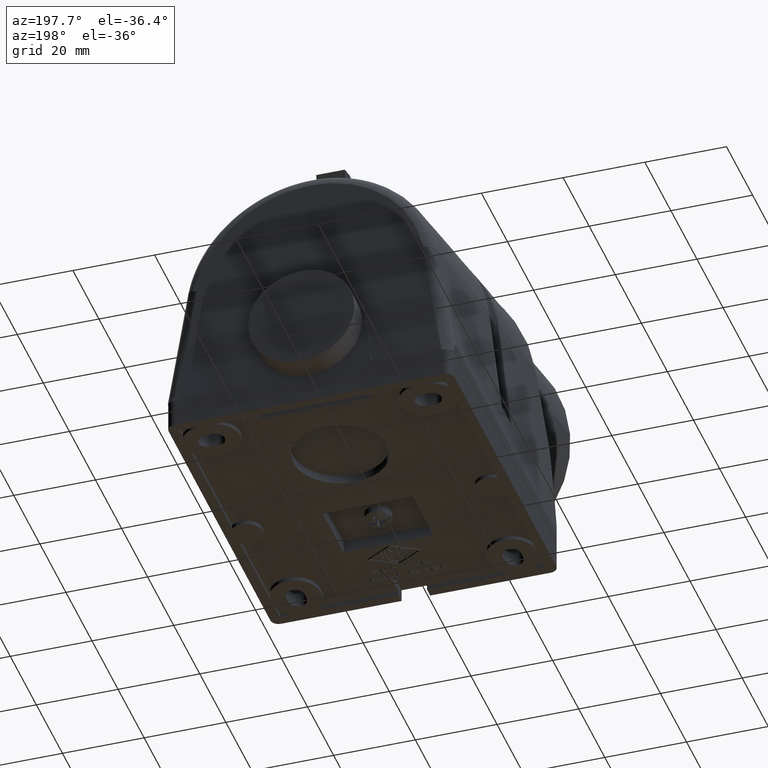
[diagram: clean part render]
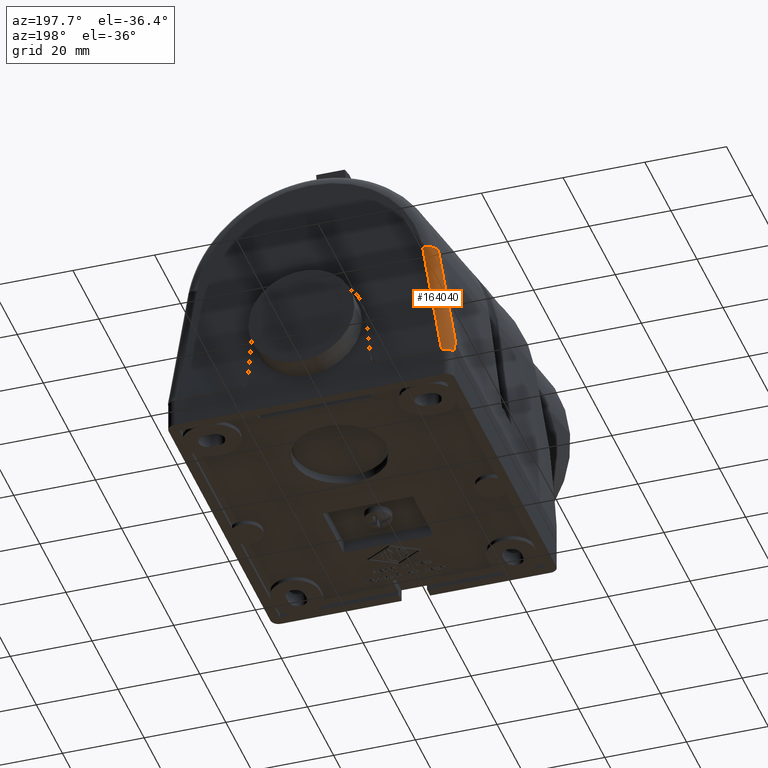
[diagram: same view with one face highlighted and labeled with its STEP entity id]
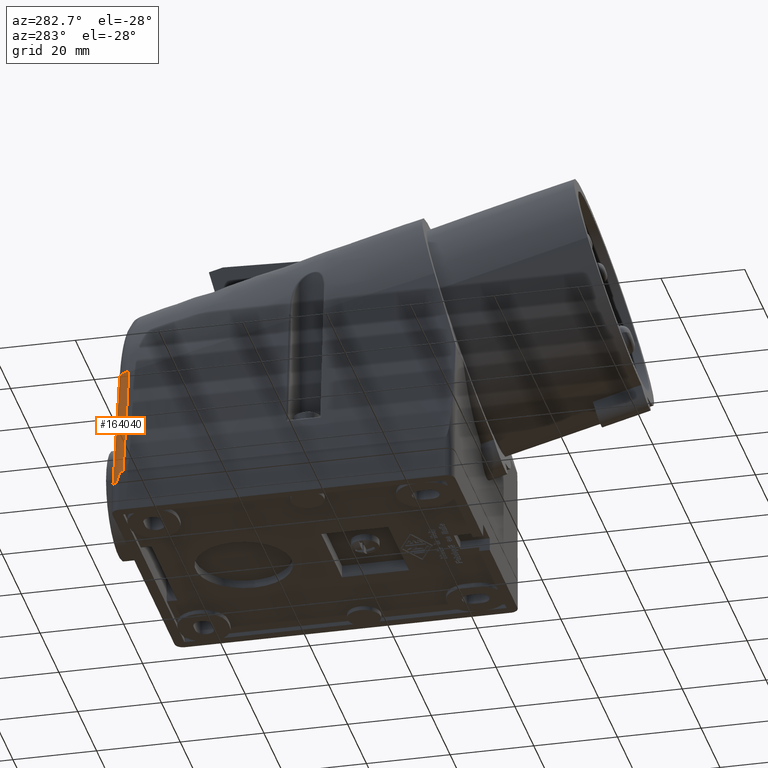
[diagram: same view with one face highlighted and labeled with its STEP entity id]
A machine part, auxiliary view. The second image highlights one B-rep face of the part: STEP entity #164040.
A second angle (auxiliary view) of the same face is appended — the face is thin or edge-on in the first view.
In plain terms, the highlighted face is a freeform B-spline surface patch.
Its self-contained STEP definition (entity closure, byte-faithful):
#14720=CARTESIAN_POINT('',(16.3582591899884,151.150133243389,
30.9684872942009));
#14730=VERTEX_POINT('',#14720);
#14760=CARTESIAN_POINT('',(16.3582591899884,151.150133243389,
30.9684872942009));
#14770=CARTESIAN_POINT('',(16.3394756758895,151.152263626485,
30.8464377283722));
#14780=CARTESIAN_POINT('',(16.3207169550342,151.154391388344,
30.7245383330639));
#14790=CARTESIAN_POINT('',(15.9371637126508,151.197888634816,
28.2325827516662));
#14800=CARTESIAN_POINT('',(15.5717947111044,151.23925118952,
25.8629235797078));
#14810=CARTESIAN_POINT('',(14.8399322437501,151.321973086947,
21.1237892500856));
#14820=CARTESIAN_POINT('',(14.4734381190812,151.36333249416,
18.7543103977778));
#14830=CARTESIAN_POINT('',(13.7438993153299,151.445545062126,
14.0443555334652));
#14840=CARTESIAN_POINT('',(13.3808675610874,151.486398178918,
11.7038820399362));
#14850=CARTESIAN_POINT('',(12.835642852448,151.547676044745,
8.19327545788855));
#14860=CARTESIAN_POINT('',(12.6537884870661,151.568101682323,
7.02309146479639));
#14870=CARTESIAN_POINT('',(12.3808451267146,151.598739732108,
5.26783876814393));
#14880=CARTESIAN_POINT('',(12.2898371036169,151.608952339634,
4.68275887486088));
#14890=CARTESIAN_POINT('',(12.1532855502537,151.624271150819,
3.80514476984341));
#14900=CARTESIAN_POINT('',(12.1077617841068,151.629377403959,
3.51260772334019));
#14910=CARTESIAN_POINT('',(12.0394664040757,151.637036754998,
3.07380379621401));
#14920=CARTESIAN_POINT('',(12.0166995632146,151.639589877589,
2.92753550091416));
#14930=CARTESIAN_POINT('',(11.9882392056473,151.642781251447,
2.74470181506648));
#14940=CARTESIAN_POINT('',(11.982548285605,151.643419385507,
2.70814313924081));
#14950=CARTESIAN_POINT('',(11.9711637464653,151.644695933111,
2.63500977597465));
#14960=CARTESIAN_POINT('',(11.9654743615852,151.645333960546,
2.59845720873708));
#14970=CARTESIAN_POINT('',(11.9483966443726,151.647248373591,
2.4887805588414));
#14980=CARTESIAN_POINT('',(11.9369907317299,151.648525824098,
2.41559546829519));
#14990=CARTESIAN_POINT('',(11.8799517856634,151.654908630516,
2.04992473352391));
#15000=CARTESIAN_POINT('',(11.8341691970418,151.660014314261,
1.75742030766674));
#15010=CARTESIAN_POINT('',(11.7423512811458,151.670224671364,
1.17246934099092));
#15020=CARTESIAN_POINT('',(11.6963156431398,151.675329358201,
0.88002202794935));
#15030=CARTESIAN_POINT('',(11.6040245427899,151.685538416829,
0.295145450881856));
#15040=CARTESIAN_POINT('',(11.5577711443752,151.69064254527,
0.0027301283440142));
#15050=CARTESIAN_POINT('',(11.4650755614264,151.700850488563,
-0.582082551227911));
#15060=CARTESIAN_POINT('',(11.4186336519094,151.705954262514,
-0.874477565042708));
#15070=CARTESIAN_POINT('',(11.2790616609025,151.721265197763,
-1.75164045801822));
#15080=CARTESIAN_POINT('',(11.1856931953877,151.731471271296,
-2.33634601913609));
#15090=CARTESIAN_POINT('',(11.089881852221,151.741915781187,
-2.93471159004782));
#15100=CARTESIAN_POINT('',(11.087679682182,151.742155826934,
-2.94846380168504));
#15110=CARTESIAN_POINT('',(11.0854773804384,151.742395871655,
-2.96221595449196));
#15120=B_SPLINE_CURVE_WITH_KNOTS('',3,(#14760,#14770,#14780,#14790,
#14800,#14810,#14820,#14830,#14840,#14850,#14860,#14870,#14880,#14890,
#14900,#14910,#14920,#14930,#14940,#14950,#14960,#14970,#14980,#14990,
#15000,#15010,#15020,#15030,#15040,#15050,#15060,#15070,#15080,#15090,
#15100,#15110),.UNSPECIFIED.,.F.,.F.,(4,2,2,2,2,2,2,2,2,2,2,2,2,2,2,2,2,
4),(0.,0.370932338242532,7.56424973885539,14.7576346102345,
21.8634976009697,25.4164486433955,27.1929287476784,28.0811698696494,
28.5252905849976,28.6363204538176,28.7472982026934,28.9689727505356,
29.8558381380065,30.7429288936756,31.630196082612,32.5176042480671,
34.2927462228571,34.3345041400501),.UNSPECIFIED.);
#15130=CARTESIAN_POINT('',(11.5573064982427,151.690690199838,
1.77635683940025E-15));
#15140=VERTEX_POINT('',#15130);
#15150=EDGE_CURVE('',#14730,#15140,#15120,.T.);
#23180=CARTESIAN_POINT('',(13.3959867161082,148.270471415851,
31.3750076208347));
#23190=VERTEX_POINT('',#23180);
#32870=CARTESIAN_POINT('',(77.9930524789947,109.69038554375,
1.77635683940025E-15));
#32880=DIRECTION('',(-0.,0.,-1.));
#32890=DIRECTION('',(-0.,-1.,0.));
#32900=AXIS2_PLACEMENT_3D('',#32870,#32880,#32890);
#32910=PLANE('',#32900);
#45670=CARTESIAN_POINT('',(13.3959867161081,148.270471415851,
31.3750076208347));
#45680=CARTESIAN_POINT('',(13.3771345353187,148.271945181401,
31.2526761735191));
#45690=CARTESIAN_POINT('',(13.3582472348222,148.273165403463,
31.1301926508231));
#45700=CARTESIAN_POINT('',(12.9742789239599,148.30465403487,
28.638639043564));
#45710=CARTESIAN_POINT('',(12.6085964259826,148.335015412872,
26.269353258562));
#45720=CARTESIAN_POINT('',(11.8762309160192,148.396495542759,
21.5308900981883));
#45730=CARTESIAN_POINT('',(11.5095484415175,148.427614283566,
19.1617165716625));
#45740=CARTESIAN_POINT('',(10.7797395618731,148.490156977178,
14.4523274730381));
#45750=CARTESIAN_POINT('',(10.4166234271115,148.52157270372,
12.1121057828522));
#45760=CARTESIAN_POINT('',(9.87133702540012,148.56915524104,
8.60186279369063));
#45770=CARTESIAN_POINT('',(9.68947165574938,148.585092729939,
7.43178939230677));
#45780=CARTESIAN_POINT('',(9.41652699438179,148.60910861857,
5.67670236228185));
#45790=CARTESIAN_POINT('',(9.32552070423741,148.617132219912,
5.09167527988618));
#45800=CARTESIAN_POINT('',(9.18897535474765,148.629194424844,
4.21414023074397));
#45810=CARTESIAN_POINT('',(9.14345418820572,148.633219632821,
3.92162906473896));
#45820=CARTESIAN_POINT('',(9.07516354019031,148.639264071339,
3.48286361904154));
#45830=CARTESIAN_POINT('',(9.05239855185628,148.641279984711,
3.33660897067749));
#45840=CARTESIAN_POINT('',(9.02394034493802,148.643801260461,
3.15379011289883));
#45850=CARTESIAN_POINT('',(9.01824726969742,148.644305703142,
3.11721773625814));
#45860=CARTESIAN_POINT('',(9.00686900910318,148.645314010087,
3.04412487704148));
#45870=CARTESIAN_POINT('',(9.00118100519187,148.645817786263,
3.00758121481611));
#45880=CARTESIAN_POINT('',(8.98414254906837,148.647334229481,
2.89815661753258));
#45890=CARTESIAN_POINT('',(8.97279388414102,148.648342788055,
2.82533864168919));
#45900=CARTESIAN_POINT('',(8.91594750902398,148.653387887327,
2.46089987595847));
#45910=CARTESIAN_POINT('',(8.87031401214267,148.657416087925,
2.16934212608293));
#45920=CARTESIAN_POINT('',(8.77876736919753,148.665465440632,
1.58610043210767));
#45930=CARTESIAN_POINT('',(8.73285413053751,148.669486541805,
1.29441730064089));
#45940=CARTESIAN_POINT('',(8.64079630320044,148.677525620528,
0.710985173951132));
#45950=CARTESIAN_POINT('',(8.59464939540251,148.681543767226,
0.419222309241027));
#45960=CARTESIAN_POINT('',(8.54361233560349,148.685978193699,
0.0972046836502773));
#45970=CARTESIAN_POINT('',(8.5388166057993,148.686394784674,
0.0669525422168125));
#45980=CARTESIAN_POINT('',(8.5340198571094,148.686811374004,
0.0367003334339184));
#45990=B_SPLINE_CURVE_WITH_KNOTS('',3,(#45670,#45680,#45690,#45700,
#45710,#45720,#45730,#45740,#45750,#45760,#45770,#45780,#45790,#45800,
#45810,#45820,#45830,#45840,#45850,#45860,#45870,#45880,#45890,#45900,
#45910,#45920,#45930,#45940,#45950,#45960,#45970,#45980),.UNSPECIFIED.,
.F.,.F.,(4,2,2,2,2,2,2,2,2,2,2,2,2,2,2,4),(0.,0.370932338242532,
7.56424973885539,14.7576346102345,21.8634976009697,25.4164486433955,
27.1929287476784,28.0811698696494,28.5252905849976,28.6363204538176,
28.7472982026934,28.9689727505356,29.8558381380065,30.7429288936756,
31.630196082612,31.7221935308179),.UNSPECIFIED.);
#46000=CARTESIAN_POINT('',(9.,148.645923350407,2.99999915269815));
#46010=VERTEX_POINT('',#46000);
#46020=EDGE_CURVE('',#23190,#46010,#45990,.T.);
#78650=CARTESIAN_POINT('',(9.,149.69038554375,3.));
#78660=DIRECTION('',(-1.,0.,0.));
#78670=DIRECTION('',(-0.,-1.,0.));
#78680=AXIS2_PLACEMENT_3D('',#78650,#78660,#78670);
#78690=PLANE('',#78680);
#78820=CARTESIAN_POINT('',(9.,150.303273490881,1.77635683940025E-15));
#78830=VERTEX_POINT('',#78820);
#78860=CARTESIAN_POINT('',(16.3582591899884,151.150133243389,
30.9684872942009));
#78870=CARTESIAN_POINT('',(16.3394756758895,151.152263626485,
30.8464377283722));
#78880=CARTESIAN_POINT('',(16.3207169550342,151.154391388344,
30.7245383330639));
#78890=CARTESIAN_POINT('',(15.9371637126508,151.197888634816,
28.2325827516662));
#78900=CARTESIAN_POINT('',(15.5717947111044,151.23925118952,
25.8629235797078));
#78910=CARTESIAN_POINT('',(14.8399322437501,151.321973086947,
21.1237892500856));
#78920=CARTESIAN_POINT('',(14.4734381190812,151.36333249416,
18.7543103977778));
#78930=CARTESIAN_POINT('',(13.7438993153299,151.445545062126,
14.0443555334652));
#78940=CARTESIAN_POINT('',(13.3808675610874,151.486398178918,
11.7038820399362));
#78950=CARTESIAN_POINT('',(12.835642852448,151.547676044745,
8.19327545788855));
#78960=CARTESIAN_POINT('',(12.6537884870661,151.568101682323,
7.02309146479639));
#78970=CARTESIAN_POINT('',(12.3808451267146,151.598739732108,
5.26783876814393));
#78980=CARTESIAN_POINT('',(12.2898371036169,151.608952339634,
4.68275887486088));
#78990=CARTESIAN_POINT('',(12.1532855502537,151.624271150819,
3.80514476984341));
#79000=CARTESIAN_POINT('',(12.1077617841068,151.629377403959,
3.51260772334019));
#79010=CARTESIAN_POINT('',(12.0394664040757,151.637036754998,
3.07380379621401));
#79020=CARTESIAN_POINT('',(12.0166995632146,151.639589877589,
2.92753550091416));
#79030=CARTESIAN_POINT('',(11.9882392056473,151.642781251447,
2.74470181506648));
#79040=CARTESIAN_POINT('',(11.982548285605,151.643419385507,
2.70814313924081));
#79050=CARTESIAN_POINT('',(11.9711637464653,151.644695933111,
2.63500977597465));
#79060=CARTESIAN_POINT('',(11.9654743615852,151.645333960546,
2.59845720873708));
#79070=CARTESIAN_POINT('',(11.9483966443726,151.647248373591,
2.4887805588414));
#79080=CARTESIAN_POINT('',(11.9369907317299,151.648525824098,
2.41559546829519));
#79090=CARTESIAN_POINT('',(11.8799517856634,151.654908630516,
2.04992473352391));
#79100=CARTESIAN_POINT('',(11.8341691970418,151.660014314261,
1.75742030766674));
#79110=CARTESIAN_POINT('',(11.7423512811458,151.670224671364,
1.17246934099092));
#79120=CARTESIAN_POINT('',(11.6963156431398,151.675329358201,
0.88002202794935));
#79130=CARTESIAN_POINT('',(11.6040245427899,151.685538416829,
0.295145450881856));
#79140=CARTESIAN_POINT('',(11.5577711443752,151.69064254527,
0.0027301283440142));
#79150=CARTESIAN_POINT('',(11.4650755614264,151.700850488563,
-0.582082551227911));
#79160=CARTESIAN_POINT('',(11.4186336519094,151.705954262514,
-0.874477565042708));
#79170=CARTESIAN_POINT('',(11.2790616609025,151.721265197763,
-1.75164045801822));
#79180=CARTESIAN_POINT('',(11.1856931953877,151.731471271296,
-2.33634601913609));
#79190=CARTESIAN_POINT('',(10.9984576384785,151.751882044817,
-3.50567845099773));
#79200=CARTESIAN_POINT('',(10.9045922213987,151.762086477411,
-4.09029000274163));
#79210=CARTESIAN_POINT('',(10.7164617994828,151.782494764056,
-5.25947996158983));
#79220=CARTESIAN_POINT('',(10.6222002542422,151.79269819387,
-5.84403406413831));
#79230=CARTESIAN_POINT('',(10.4333562227278,151.813104492233,
-7.01311011436419));
#79240=CARTESIAN_POINT('',(10.3387760835784,151.823307077961,
-7.59761585928156));
#79250=CARTESIAN_POINT('',(10.1493545249973,151.843711746776,
-8.76659855276121));
#79260=CARTESIAN_POINT('',(10.0545147623419,151.853913633012,
-9.35106422380086));
#79270=CARTESIAN_POINT('',(9.86462049578615,151.87431696429,
-10.5199702898585));
#79280=CARTESIAN_POINT('',(9.76956719921882,151.884518267537,
-11.1044025614869));
#79290=CARTESIAN_POINT('',(9.57928254215622,151.904920531468,
-12.2732474792414));
#79300=CARTESIAN_POINT('',(9.48405208451423,151.915121387062,
-12.8576541048135));
#79310=CARTESIAN_POINT('',(9.29344346568946,151.935522770343,
-14.0264485702453));
#79320=CARTESIAN_POINT('',(9.19806535254936,151.945723287039,
-14.6108357803494));
#79330=CARTESIAN_POINT('',(8.91174615021422,151.976324444959,
-16.3639749434204));
#79340=CARTESIAN_POINT('',(8.72062478186999,151.996724368961,
-17.5326858067682));
#79350=CARTESIAN_POINT('',(8.33804525742825,152.037523253735,
-19.8700523500512));
#79360=CARTESIAN_POINT('',(8.14658767189094,152.057922085876,
-21.0387006607364));
#79370=CARTESIAN_POINT('',(7.7634395692336,152.098719346571,
-23.3759741605673));
#79380=CARTESIAN_POINT('',(7.57175069764899,152.119117559645,
-24.544587004935));
#79390=CARTESIAN_POINT('',(7.18821934771819,152.159913725979,
-26.881797808894));
#79400=CARTESIAN_POINT('',(6.99637801895105,152.180311531895,
-28.0503873271692));
#79410=CARTESIAN_POINT('',(6.61260155137323,152.221106998082,
-30.3875580197134));
#79420=CARTESIAN_POINT('',(6.42066722651703,152.24150455556,
-31.5561333050316));
#79430=CARTESIAN_POINT('',(6.03675048319233,152.282299618654,
-33.8932809043716));
#79440=CARTESIAN_POINT('',(5.84476747843838,152.302697175627,
-35.0618561607535));
#79450=CARTESIAN_POINT('',(5.46079562873004,152.34349157465,
-37.3989657155106));
#79460=CARTESIAN_POINT('',(5.2687941186108,152.363889754763,
-38.5675766715152));
#79470=CARTESIAN_POINT('',(5.0768118114247,152.384286711842,
-39.7361175599585));
#79480=CARTESIAN_POINT('',(14.6795836079231,151.145608449732,
31.2277125491516));
#79490=CARTESIAN_POINT('',(14.6604574058459,151.147744140818,
31.1053588888187));
#79500=CARTESIAN_POINT('',(14.6412471326098,151.149881044652,
30.9829357501118));
#79510=CARTESIAN_POINT('',(14.2523324755056,151.193358340071,
28.4921231637106));
#79520=CARTESIAN_POINT('',(13.8820391759636,151.234702517601,
26.1235168194059));
#79530=CARTESIAN_POINT('',(13.1406459717404,151.31738911425,
21.3864048700532));
#79540=CARTESIAN_POINT('',(12.769545980978,151.358731527702,
19.0178995896359));
#79550=CARTESIAN_POINT('',(12.0311420908476,151.44091141518,
14.309816989216));
#79560=CARTESIAN_POINT('',(11.6638468398102,151.48174891344,
11.9702382808094));
#79570=CARTESIAN_POINT('',(11.1124238942187,151.543003977689,
8.46093800029113));
#79580=CARTESIAN_POINT('',(10.9285356055056,151.563422196923,
7.29117900382503));
#79590=CARTESIAN_POINT('',(10.6525888082412,151.594049240266,
5.53655686580042));
#79600=CARTESIAN_POINT('',(10.5605873455049,151.604258221973,
4.95168469555526));
#79610=CARTESIAN_POINT('',(10.4225572379952,151.619571624793,
4.07438043551011));
#79620=CARTESIAN_POINT('',(10.3765425064449,151.624676085591,
3.78194607228438));
#79630=CARTESIAN_POINT('',(10.3075135479933,151.632332755711,
3.34329573488386));
#79640=CARTESIAN_POINT('',(10.2845026474943,151.63488498731,
3.19707848450158));
#79650=CARTESIAN_POINT('',(10.2557378101962,151.638075248827,
3.01430852458969));
#79660=CARTESIAN_POINT('',(10.2499844349186,151.638713337016,
2.97775247671958));
#79670=CARTESIAN_POINT('',(10.2384814242905,151.639989087691,
2.90466476953652));
#79680=CARTESIAN_POINT('',(10.2327315825939,151.640626835978,
2.86812819460161));
#79690=CARTESIAN_POINT('',(10.2154970324326,151.642538119104,
2.7586308576527));
#79700=CARTESIAN_POINT('',(10.2040046606973,151.64381145088,
2.68568172905609));
#79710=CARTESIAN_POINT('',(10.1464768654182,151.650179809774,
2.32083869240427));
#79720=CARTESIAN_POINT('',(10.1002962443017,151.655274315391,
2.02897466109091));
#79730=CARTESIAN_POINT('',(10.0076615482956,151.665464163072,
1.44519867842405));
#79740=CARTESIAN_POINT('',(9.96120727404483,151.670559502124,
1.15328689962819));
#79750=CARTESIAN_POINT('',(9.86806937099175,151.680750704886,
0.569433284394195));
#79760=CARTESIAN_POINT('',(9.8213852324487,151.685846606511,
0.277489275830527));
#79770=CARTESIAN_POINT('',(9.72782137418976,151.696038796743,
-0.306420911486983));
#79780=CARTESIAN_POINT('',(9.68094150377683,151.701135091116,
-0.598387420590145));
#79790=CARTESIAN_POINT('',(9.54003970947915,151.716425422408,
-1.47436991363016));
#79800=CARTESIAN_POINT('',(9.44577620752091,151.726618852439,
-2.05835112896736));
#79810=CARTESIAN_POINT('',(9.25673922759844,151.747006479315,
-3.22635749042552));
#79820=CARTESIAN_POINT('',(9.16196452322879,151.757200714853,
-3.81038485323814));
#79830=CARTESIAN_POINT('',(8.97201771725356,151.777589594216,
-4.97846296965937));
#79840=CARTESIAN_POINT('',(8.87684450104998,151.787784303596,
-5.56251747889142));
#79850=CARTESIAN_POINT('',(8.68618263105823,151.808173971034,
-6.73064074409626));
#79860=CARTESIAN_POINT('',(8.59069326454206,151.818368972994,
-7.3147120151909));
#79870=CARTESIAN_POINT('',(8.3994610034419,151.838759143836,
-8.48286412036809));
#79880=CARTESIAN_POINT('',(8.3037176292933,151.848954343462,
-9.06694671576055));
#79890=CARTESIAN_POINT('',(8.11202542286971,151.869344860604,
-10.2351186604762));
#79900=CARTESIAN_POINT('',(8.01607625428126,151.879540200472,
-10.8192092902994));
#79910=CARTESIAN_POINT('',(7.82401017102932,151.899931009382,
-11.98739795041));
#79920=CARTESIAN_POINT('',(7.72789301201777,151.910126495146,
-12.5714969386092));
#79930=CARTESIAN_POINT('',(7.53552200558516,151.930517540891,
-13.7396991669317));
#79940=CARTESIAN_POINT('',(7.439268097754,151.940713101465,
-14.3238024410261));
#79950=CARTESIAN_POINT('',(7.15033408854252,151.97130039571,
-16.076147354719));
#79960=CARTESIAN_POINT('',(6.95749313667229,151.991691702189,
-17.2443645205276));
#79970=CARTESIAN_POINT('',(6.57152000115691,152.03247461984,
-19.5808163079077));
#79980=CARTESIAN_POINT('',(6.37838699055034,152.052866248335,
-20.749051921996));
#79990=CARTESIAN_POINT('',(5.99193728082131,152.093649762001,
-23.0855378551027));
#80000=CARTESIAN_POINT('',(5.79861984882579,152.114041682487,
-24.2537901973188));
#80010=CARTESIAN_POINT('',(5.41187942811322,152.154825811377,
-26.5903113765466));
#80020=CARTESIAN_POINT('',(5.21845594544299,152.175218045746,
-27.7585817010834));
#80030=CARTESIAN_POINT('',(4.83156176187265,152.216002826929,
-30.0951402501893));
#80040=CARTESIAN_POINT('',(4.63809069683775,152.236395395206,
-31.2634297043435));
#80050=CARTESIAN_POINT('',(4.2511454727175,152.277180866049,
-33.6000277640576));
#80060=CARTESIAN_POINT('',(4.05766986496319,152.297573911919,
-34.7683445794582));
#80070=CARTESIAN_POINT('',(3.670756152384,152.338359616306,
-37.1049560188909));
#80080=CARTESIAN_POINT('',(3.47730369180008,152.358753790884,
-38.2733374979575));
#80090=CARTESIAN_POINT('',(3.28389334940424,152.379146665901,
-39.4416445252175));
#80100=CARTESIAN_POINT('',(13.4673170585743,149.967449851687,
31.393611032794));
#80110=CARTESIAN_POINT('',(13.4481406684784,149.969228965559,
31.2713496330779));
#80120=CARTESIAN_POINT('',(13.4289419775244,149.970828237816,
31.1489452168218));
#80130=CARTESIAN_POINT('',(13.0384863217527,150.008051685808,
28.6584785113098));
#80140=CARTESIAN_POINT('',(12.6667968746285,150.043645906377,
26.2901983927034));
#80150=CARTESIAN_POINT('',(11.9227362219254,150.115191412429,
21.5536995035029));
#80160=CARTESIAN_POINT('',(11.5503652417938,150.151142730446,
19.1854840357999));
#80170=CARTESIAN_POINT('',(10.8095457358324,150.222933700645,
14.4779511043672));
#80180=CARTESIAN_POINT('',(10.4411040457216,150.258769458321,
12.1386298223869));
#80190=CARTESIAN_POINT('',(9.88803450447926,150.312744009884,
8.62970240467283));
#80200=CARTESIAN_POINT('',(9.70360914766418,150.330772446199,
7.46006281718402));
#80210=CARTESIAN_POINT('',(9.42687414640703,150.357868124912,
5.70561764925129));
#80220=CARTESIAN_POINT('',(9.33461273882056,150.36690887688,
5.12080334997321));
#80230=CARTESIAN_POINT('',(9.19619693363086,150.380482995052,
4.24358531575422));
#80240=CARTESIAN_POINT('',(9.15005432977409,150.385009870983,
3.95117953009421));
#80250=CARTESIAN_POINT('',(9.08083455715034,150.391803400734,
3.51257162151641));
#80260=CARTESIAN_POINT('',(9.0577603692607,150.394068441902,
3.36636941363144));
#80270=CARTESIAN_POINT('',(9.0289162898963,150.396900422644,
3.18361599412668));
#80280=CARTESIAN_POINT('',(9.02314605790099,150.397466985152,
3.14705673124672));
#80290=CARTESIAN_POINT('',(9.0116136392951,150.398599375122,
3.07398996236094));
#80300=CARTESIAN_POINT('',(9.0058483596545,150.399165341886,
3.03745938614706));
#80310=CARTESIAN_POINT('',(8.98858303223195,150.400864307292,
2.92807291651233));
#80320=CARTESIAN_POINT('',(8.97708297345941,150.401994589681,
2.85528002103591));
#80330=CARTESIAN_POINT('',(8.91947755921363,150.407649969506,
2.49096878338216));
#80340=CARTESIAN_POINT('',(8.87323175842051,150.412169887625,
2.19951421769519));
#80350=CARTESIAN_POINT('',(8.78045435813052,150.421206508959,
1.6164814653913));
#80360=CARTESIAN_POINT('',(8.73392264135192,150.425723176712,
1.32490406949501));
#80370=CARTESIAN_POINT('',(8.64062444035519,150.434754920411,
0.741684693739318));
#80380=CARTESIAN_POINT('',(8.59385562946835,150.439270195686,
0.450029071381161));
#80390=CARTESIAN_POINT('',(8.50011826624947,150.448300721682,
-0.133333058002981));
#80400=CARTESIAN_POINT('',(8.45314925774181,150.452816001288,
-0.425041834242593));
#80410=CARTESIAN_POINT('',(8.31196909119941,150.466364977422,
-1.30032577610653));
#80420=CARTESIAN_POINT('',(8.21751421172925,150.475399249087,
-1.88388603851667));
#80430=CARTESIAN_POINT('',(8.02808446777533,150.493478415989,
-3.05113723565124));
#80440=CARTESIAN_POINT('',(7.93310634832199,150.502523477186,
-3.63484288059735));
#80450=CARTESIAN_POINT('',(7.74275085923575,150.520626704292,
-4.80231712045201));
#80460=CARTESIAN_POINT('',(7.64736916040991,150.529685208451,
-5.38610936845808));
#80470=CARTESIAN_POINT('',(7.45628998266908,150.547817104567,
-6.5537402506725));
#80480=CARTESIAN_POINT('',(7.36058964169515,150.556890726891,
-7.13759465539161));
#80490=CARTESIAN_POINT('',(7.16893617825694,150.575053867784,
-8.30533931131619));
#80500=CARTESIAN_POINT('',(7.07298107677954,150.584143549362,
-8.88924054432762));
#80510=CARTESIAN_POINT('',(6.88086694529833,150.602339337561,
-10.0570714604143));
#80520=CARTESIAN_POINT('',(6.7847064968539,150.611445563202,
-10.6410090625586));
#80530=CARTESIAN_POINT('',(6.59221994523684,150.629674704331,
-11.8089097521218));
#80540=CARTESIAN_POINT('',(6.49589279489756,150.638797709046,
-12.3928787131519));
#80550=CARTESIAN_POINT('',(6.30310429973697,150.657060410423,
-13.5608361066541));
#80560=CARTESIAN_POINT('',(6.20664281533434,150.666200113462,
-14.1448250670447));
#80570=CARTESIAN_POINT('',(5.91708706171154,150.693644890812,
-15.8968657961473));
#80580=CARTESIAN_POINT('',(5.72383761911223,150.711974282781,
-17.0649033885415));
#80590=CARTESIAN_POINT('',(5.3370585865975,150.748698107626,
-19.4010426760704));
#80600=CARTESIAN_POINT('',(5.14352719231037,150.767092634169,
-20.5691512644505));
#80610=CARTESIAN_POINT('',(4.75629482058995,150.803944182721,
-22.9054054403314));
#80620=CARTESIAN_POINT('',(4.56259146347706,150.822401387083,
-24.0735630664167));
#80630=CARTESIAN_POINT('',(4.17509305651916,150.859375851564,
-26.4099126639024));
#80640=CARTESIAN_POINT('',(3.98129638828474,150.877893239952,
-27.5781129567153));
#80650=CARTESIAN_POINT('',(3.59366931728588,150.914985560748,
-29.9145458765908));
#80660=CARTESIAN_POINT('',(3.39983777204494,150.933560586255,
-31.0827844618353));
#80670=CARTESIAN_POINT('',(3.01218460397681,150.970765697922,
-33.4192926068026));
#80680=CARTESIAN_POINT('',(2.81836331318323,150.989395741515,
-34.5875595439471));
#80690=CARTESIAN_POINT('',(2.43076149458766,151.026708700759,
-36.924137331618));
#80700=CARTESIAN_POINT('',(2.23697943578797,151.045391760155,
-38.0924568993337));
#80710=CARTESIAN_POINT('',(2.04323528693394,151.064099629134,
-39.2607681507692));
#80720=CARTESIAN_POINT('',(13.3959867161081,148.270471415851,
31.3750076208347));
#80730=CARTESIAN_POINT('',(13.3771345353187,148.271945181401,
31.2526761735191));
#80740=CARTESIAN_POINT('',(13.3582472348222,148.273165403463,
31.1301926508231));
#80750=CARTESIAN_POINT('',(12.9742789239599,148.30465403487,
28.638639043564));
#80760=CARTESIAN_POINT('',(12.6085964259826,148.335015412872,
26.269353258562));
#80770=CARTESIAN_POINT('',(11.8762309160192,148.396495542759,
21.5308900981883));
#80780=CARTESIAN_POINT('',(11.5095484415175,148.427614283566,
19.1617165716625));
#80790=CARTESIAN_POINT('',(10.7797395618731,148.490156977178,
14.4523274730381));
#80800=CARTESIAN_POINT('',(10.4166234271115,148.52157270372,
12.1121057828522));
#80810=CARTESIAN_POINT('',(9.87133702540012,148.56915524104,
8.60186279369063));
#80820=CARTESIAN_POINT('',(9.68947165574938,148.585092729939,
7.43178939230677));
#80830=CARTESIAN_POINT('',(9.41652699438179,148.60910861857,
5.67670236228185));
#80840=CARTESIAN_POINT('',(9.32552070423741,148.617132219912,
5.09167527988618));
#80850=CARTESIAN_POINT('',(9.18897535474765,148.629194424844,
4.21414023074397));
#80860=CARTESIAN_POINT('',(9.14345418820572,148.633219632821,
3.92162906473896));
#80870=CARTESIAN_POINT('',(9.07516354019031,148.639264071339,
3.48286361904154));
#80880=CARTESIAN_POINT('',(9.05239855185628,148.641279984711,
3.33660897067749));
#80890=CARTESIAN_POINT('',(9.02394034493802,148.643801260461,
3.15379011289883));
#80900=CARTESIAN_POINT('',(9.01824726969742,148.644305703142,
3.11721773625814));
#80910=CARTESIAN_POINT('',(9.00686900910318,148.645314010087,
3.04412487704148));
#80920=CARTESIAN_POINT('',(9.00118100519187,148.645817786263,
3.00758121481611));
#80930=CARTESIAN_POINT('',(8.98414254906837,148.647334229481,
2.89815661753258));
#80940=CARTESIAN_POINT('',(8.97279388414102,148.648342788055,
2.82533864168919));
#80950=CARTESIAN_POINT('',(8.91594750902398,148.653387887327,
2.46089987595847));
#80960=CARTESIAN_POINT('',(8.87031401214267,148.657416087925,
2.16934212608293));
#80970=CARTESIAN_POINT('',(8.77876736919753,148.665465440632,
1.58610043210767));
#80980=CARTESIAN_POINT('',(8.73285413053751,148.669486541805,
1.29441730064089));
#80990=CARTESIAN_POINT('',(8.64079630320044,148.677525620528,
0.710985173951132));
#81000=CARTESIAN_POINT('',(8.59464939540251,148.681543767226,
0.419222309241027));
#81010=CARTESIAN_POINT('',(8.50215732660868,148.689580070258,
-0.164355124417037));
#81020=CARTESIAN_POINT('',(8.45581171530933,148.693598245495,
-0.456172005990544));
#81030=CARTESIAN_POINT('',(8.31650197987451,148.705657481087,
-1.33178176622246));
#81040=CARTESIAN_POINT('',(8.22329405199679,148.713701064228,
-1.91556011840162));
#81050=CARTESIAN_POINT('',(8.03635124991466,148.72980926036,
-3.08324784170289));
#81060=CARTESIAN_POINT('',(7.94261316943234,148.737873968309,
-3.6671722391295));
#81070=CARTESIAN_POINT('',(7.7547269062954,148.754029932118,
-4.83508263136307));
#81080=CARTESIAN_POINT('',(7.6605744042623,148.762121468764,
-5.41909273949791));
#81090=CARTESIAN_POINT('',(7.47194045770897,148.778334529049,
-6.58715739564773));
#81100=CARTESIAN_POINT('',(7.37745615079838,148.786456249435,
-7.17122802916337));
#81110=CARTESIAN_POINT('',(7.18822022206616,148.802731576131,
-8.33940281047844));
#81120=CARTESIAN_POINT('',(7.09346661744195,148.810885324543,
-8.92351816307372));
#81130=CARTESIAN_POINT('',(6.9037401473243,148.827225664767,
-10.0917747345812));
#81140=CARTESIAN_POINT('',(6.80876585878245,148.835412361933,
-10.6759240345325));
#81150=CARTESIAN_POINT('',(6.61863586269351,148.8518190012,
-11.8442453750172));
#81160=CARTESIAN_POINT('',(6.52347910351177,148.860039023293,
-12.4284234091459));
#81170=CARTESIAN_POINT('',(6.33301542286992,148.876512273981,
-13.5967961031766));
#81180=CARTESIAN_POINT('',(6.23770834928846,148.884765508568,
-14.180991376179));
#81190=CARTESIAN_POINT('',(5.95159190608926,148.90957533423,
-15.933646726471));
#81200=CARTESIAN_POINT('',(5.76060319275091,148.926180858554,
-17.1020884681187));
#81210=CARTESIAN_POINT('',(5.37828232380069,148.959520261003,
-19.4390242216246));
#81220=CARTESIAN_POINT('',(5.18694835838896,148.976254212474,
-20.6075253933367));
#81230=CARTESIAN_POINT('',(4.8040491840146,149.00984526765,
-22.9445529854936));
#81240=CARTESIAN_POINT('',(4.61248159407578,149.026702534098,
-24.1130916468775));
#81250=CARTESIAN_POINT('',(4.22919507202032,149.060534935446,
-26.4501918997819));
#81260=CARTESIAN_POINT('',(4.0374745220576,149.077510186772,
-27.6187619289601));
#81270=CARTESIAN_POINT('',(3.65394219494537,149.111573206548,
-29.9559232930129));
#81280=CARTESIAN_POINT('',(3.46212927791836,149.128661060456,
-31.1245206474689));
#81290=CARTESIAN_POINT('',(3.07845806296924,149.162944046224,
-33.4617357135132));
#81300=CARTESIAN_POINT('',(2.88660008983629,149.1801391387,
-34.6303508256069));
#81310=CARTESIAN_POINT('',(2.50287177192968,149.214631766366,
-36.9676147671932));
#81320=CARTESIAN_POINT('',(2.31099997140551,149.231929426687,
-38.1362720352831));
#81330=CARTESIAN_POINT('',(2.11914044290812,149.249275473408,
-39.3049166592997));
#81340=(BOUNDED_SURFACE() B_SPLINE_SURFACE(3,3,((#78860,#79480,#80100,
#80720),(#78870,#79490,#80110,#80730),(#78880,#79500,#80120,#80740),(
#78890,#79510,#80130,#80750),(#78900,#79520,#80140,#80760),(#78910,
#79530,#80150,#80770),(#78920,#79540,#80160,#80780),(#78930,#79550,
#80170,#80790),(#78940,#79560,#80180,#80800),(#78950,#79570,#80190,
#80810),(#78960,#79580,#80200,#80820),(#78970,#79590,#80210,#80830),(
#78980,#79600,#80220,#80840),(#78990,#79610,#80230,#80850),(#79000,
#79620,#80240,#80860),(#79010,#79630,#80250,#80870),(#79020,#79640,
#80260,#80880),(#79030,#79650,#80270,#80890),(#79040,#79660,#80280,
#80900),(#79050,#79670,#80290,#80910),(#79060,#79680,#80300,#80920),(
#79070,#79690,#80310,#80930),(#79080,#79700,#80320,#80940),(#79090,
#79710,#80330,#80950),(#79100,#79720,#80340,#80960),(#79110,#79730,
#80350,#80970),(#79120,#79740,#80360,#80980),(#79130,#79750,#80370,
#80990),(#79140,#79760,#80380,#81000),(#79150,#79770,#80390,#81010),(
#79160,#79780,#80400,#81020),(#79170,#79790,#80410,#81030),(#79180,
#79800,#80420,#81040),(#79190,#79810,#80430,#81050),(#79200,#79820,
#80440,#81060),(#79210,#79830,#80450,#81070),(#79220,#79840,#80460,
#81080),(#79230,#79850,#80470,#81090),(#79240,#79860,#80480,#81100),(
#79250,#79870,#80490,#81110),(#79260,#79880,#80500,#81120),(#79270,
#79890,#80510,#81130),(#79280,#79900,#80520,#81140),(#79290,#79910,
#80530,#81150),(#79300,#79920,#80540,#81160),(#79310,#79930,#80550,
#81170),(#79320,#79940,#80560,#81180),(#79330,#79950,#80570,#81190),(
#79340,#79960,#80580,#81200),(#79350,#79970,#80590,#81210),(#79360,
#79980,#80600,#81220),(#79370,#79990,#80610,#81230),(#79380,#80000,
#80620,#81240),(#79390,#80010,#80630,#81250),(#79400,#80020,#80640,
#81260),(#79410,#80030,#80650,#81270),(#79420,#80040,#80660,#81280),(
#79430,#80050,#80670,#81290),(#79440,#80060,#80680,#81300),(#79450,
#80070,#80690,#81310),(#79460,#80080,#80700,#81320),(#79470,#80090,
#80710,#81330)),.UNSPECIFIED.,.F.,.F.,.F.) B_SPLINE_SURFACE_WITH_KNOTS((
4,2,2,2,2,2,2,2,2,2,2,2,2,2,2,2,2,2,2,2,2,2,2,2,2,2,2,2,2,2,4),(4,4),(0.
,0.370932338242532,7.56424973885539,14.7576346102345,21.8634976009697,
25.4164486433955,27.1929287476784,28.0811698696494,28.5252905849976,
28.6363204538176,28.7472982026934,28.9689727505356,29.8558381380065,
30.7429288936756,31.630196082612,32.5176042480671,34.2927462228571,
36.0682095509497,37.8439085308067,39.6197817682151,41.3957894583942,
43.1719030803338,44.9481086413242,46.7243835983277,50.2770961245813,
53.829971821984,57.3829658834636,60.936048483334,64.4891978088048,
68.0423983003585,71.5955954827039),(0.,1.),.UNSPECIFIED.) 
GEOMETRIC_REPRESENTATION_ITEM() RATIONAL_B_SPLINE_SURFACE(((1.,
0.81464910325269,0.81464910325269,1.),(1.,0.814602534686626,
0.814602534686626,1.),(1.,0.814557113878719,0.814557113878719,1.),(1.,
0.813634380842228,0.813634380842228,1.),(1.,0.812785838888904,
0.812785838888904,1.),(1.,0.811143314644799,0.811143314644799,1.),(1.,
0.810349305078252,0.810349305078252,1.),(1.,0.808820616260265,
0.808820616260265,1.),(1.,0.80808532431329,0.80808532431329,1.),(1.,
0.807015945970339,0.807015945970339,1.),(1.,0.806665085807835,
0.806665085807835,1.),(1.,0.806146841607235,0.806146841607235,1.),(1.,
0.805975435832206,0.805975435832206,1.),(1.,0.80572029743468,
0.80572029743468,1.),(1.,0.805635579756301,0.805635579756301,1.),(1.,
0.805508990701803,0.805508990701803,1.),(1.,0.805466875697404,
0.805466875697404,1.),(1.,0.805414332732998,0.805414332732998,1.),(1.,
0.805403826718673,0.805403826718673,1.),(1.,0.805382839672056,
0.805382839672056,1.),(1.,0.805372319985765,0.805372319985765,1.),(1.,
0.805341443786019,0.805341443786019,1.),(1.,0.805320850163792,
0.805320850163792,1.),(1.,0.805217578415217,0.805217578415217,1.),(1.,
0.805134311872703,0.805134311872703,1.),(1.,0.804967007930949,
0.804967007930949,1.),(1.,0.804882967667038,0.804882967667038,1.),(1.,
0.804714506296105,0.804714506296105,1.),(1.,0.804630079452074,
0.804630079452074,1.),(1.,0.804461110100806,0.804461110100806,1.),(1.,
0.80437656591936,0.80437656591936,1.),(1.,0.804123016904071,
0.804123016904071,1.),(1.,0.803954162093057,0.803954162093057,1.),(1.,
0.803617747166284,0.803617747166284,1.),(1.,0.803450173829034,
0.803450173829034,1.),(1.,0.803116856931194,0.803116856931194,1.),(1.,
0.802951102311988,0.802951102311988,1.),(1.,0.802621723927173,
0.802621723927173,1.),(1.,0.802458093519989,0.802458093519989,1.),(1.,
0.802133135459955,0.802133135459955,1.),(1.,0.801971803573353,
0.801971803573353,1.),(1.,0.801651536037984,0.801651536037984,1.),(1.,
0.801492597558797,0.801492597558797,1.),(1.,0.801177160302682,
0.801177160302682,1.),(1.,0.801020659569926,0.801020659569926,1.),(1.,
0.800710110378996,0.800710110378996,1.),(1.,0.800556061749458,
0.800556061749458,1.),(1.,0.800097568020779,0.800097568020779,1.),(1.,
0.799796803546961,0.799796803546961,1.),(1.,0.799204835638978,
0.799204835638978,1.),(1.,0.79891362726754,0.79891362726754,1.),(1.,
0.798340447589287,0.798340447589287,1.),(1.,0.798058472210417,
0.798058472210417,1.),(1.,0.797503390253848,0.797503390253848,1.),(1.,
0.797230281200267,0.797230281200267,1.),(1.,0.796692553070226,
0.796692553070226,1.),(1.,0.796427932414561,0.796427932414561,1.),(1.,
0.795906806247138,0.795906806247138,1.),(1.,0.795650301204126,
0.795650301204126,1.),(1.,0.795145041908531,0.795145041908531,1.),(1.,
0.794896283910057,0.794896283910057,1.),(1.,0.79465123066154,
0.79465123066154,1.))) REPRESENTATION_ITEM('') SURFACE());
#81350=CARTESIAN_POINT('',(9.,150.303273490881,6.13298897115144E-14));
#81360=CARTESIAN_POINT('',(9.,150.284290189427,0.0718557167790581));
#81370=CARTESIAN_POINT('',(9.,150.264927114359,0.143621906742615));
#81380=CARTESIAN_POINT('',(9.,150.245122870809,0.215372569095924));
#81390=CARTESIAN_POINT('',(9.,150.225321162715,0.287114045510148));
#81400=CARTESIAN_POINT('',(9.00000000000098,150.205089284796,
0.358799270083257));
#81410=CARTESIAN_POINT('',(9.00000000000098,150.184391460255,
0.430381406660653));
#81420=CARTESIAN_POINT('',(9.00000000000098,150.163693616519,
0.501963609620573));
#81430=CARTESIAN_POINT('',(9.00000000001045,150.142529965717,
0.573442794014811));
#81440=CARTESIAN_POINT('',(9.00000000001045,150.120856393413,
0.644771884839183));
#81450=CARTESIAN_POINT('',(9.00000000001045,150.099182791436,
0.716101073321667));
#81460=CARTESIAN_POINT('',(9.0000000000425,150.076999443531,
0.787280357388859));
#81470=CARTESIAN_POINT('',(9.0000000000425,150.054250946588,
0.858262476612917));
#81480=CARTESIAN_POINT('',(9.0000000000425,150.031502416366,
0.929244699677305));
#81490=CARTESIAN_POINT('',(8.99999999999999,150.008188951581,
1.00003013169188));
#81500=CARTESIAN_POINT('',(8.99999999999999,149.984239914415,
1.07057027229565));
#81510=CARTESIAN_POINT('',(8.99999999999999,149.96029085394,
1.14111048155469));
#81520=CARTESIAN_POINT('',(9.,149.935706521133,1.21140609056895));
#81530=CARTESIAN_POINT('',(9.,149.910395593047,1.28140454625221));
#81540=CARTESIAN_POINT('',(9.,149.885084675805,1.3514029719476));
#81550=CARTESIAN_POINT('',(9.,149.859047529855,1.42110546121383));
#81560=CARTESIAN_POINT('',(9.,149.832164252324,1.49044970003102));
#81570=CARTESIAN_POINT('',(9.,149.818722593825,1.52512187034137));
#81580=CARTESIAN_POINT('',(9.,149.805068851055,1.55970441599753));
#81590=CARTESIAN_POINT('',(9.,149.791184434183,1.59418797211123));
#81600=CARTESIAN_POINT('',(9.,149.777300024257,1.62867151097275));
#81610=CARTESIAN_POINT('',(9.00000000002679,149.763184956978,
1.66305614817403));
#81620=CARTESIAN_POINT('',(9.00000000002679,149.748817645734,
1.69733081919468));
#81630=CARTESIAN_POINT('',(9.00000000002679,149.734450346415,
1.73160546176554));
#81640=CARTESIAN_POINT('',(9.00000000000836,149.719830821409,
1.76577025686343));
#81650=CARTESIAN_POINT('',(9.00000000000836,149.704933865931,
1.79981178836719));
#81660=CARTESIAN_POINT('',(9.00000000000836,149.690036929374,
1.83385327663347));
#81670=CARTESIAN_POINT('',(9.00000000000107,149.674862581441,
1.86777166322122));
#81680=CARTESIAN_POINT('',(9.00000000000107,149.659381202637,
1.90155030417785));
#81690=CARTESIAN_POINT('',(9.00000000000107,149.643899852798,
1.93532888193784));
#81700=CARTESIAN_POINT('',(9.,149.628111494178,1.96896793939578));
#81710=CARTESIAN_POINT('',(9.,149.611981078138,2.00244642685201));
#81720=CARTESIAN_POINT('',(9.,149.595853220293,2.03591960480309));
#81730=CARTESIAN_POINT('',(9.00000000000016,149.579378797167,
2.06924339949617));
#81740=CARTESIAN_POINT('',(9.00000000000016,149.562483825923,
2.10244872818051));
#81750=CARTESIAN_POINT('',(9.00000000000016,149.54559273338,
2.13564643367629));
#81760=CARTESIAN_POINT('',(9.0000000000083,149.528297850856,
2.16869183161244));
#81770=CARTESIAN_POINT('',(9.0000000000083,149.510564515602,
2.20151475378191));
#81780=CARTESIAN_POINT('',(9.0000000000083,149.492831129977,
2.23433776918292));
#81790=CARTESIAN_POINT('',(9.00000000004741,149.474659388243,
2.26693874960944));
#81800=CARTESIAN_POINT('',(9.00000000004741,149.45600229702,
2.29924496954035));
#81810=CARTESIAN_POINT('',(9.00000000004741,149.437345168137,
2.33155125468141));
#81820=CARTESIAN_POINT('',(9.,149.418202710195,2.36356364454024));
#81830=CARTESIAN_POINT('',(9.,149.398511087363,2.39520348942706));
#81840=CARTESIAN_POINT('',(9.,149.378819495366,2.42684328476818));
#81850=CARTESIAN_POINT('',(9.,149.358578559755,2.4581121217683));
#81860=CARTESIAN_POINT('',(9.,149.337702093045,2.4889181158646));
#81870=CARTESIAN_POINT('',(9.,149.323466323129,2.50992488152416));
#81880=CARTESIAN_POINT('',(9.00000000002466,149.308934301048,
2.53071663286013));
#81890=CARTESIAN_POINT('',(9.00000000002466,149.294071007742,
2.5512578406025));
#81900=CARTESIAN_POINT('',(9.00000000002466,149.279207788345,
2.57179894620274));
#81910=CARTESIAN_POINT('',(9.00000000000131,149.264013115973,
2.59209010866549));
#81920=CARTESIAN_POINT('',(9.00000000000131,149.248444672781,
2.61208698219699));
#81930=CARTESIAN_POINT('',(9.00000000000131,149.232870840652,
2.63209077754377));
#81940=CARTESIAN_POINT('',(9.00000000000014,149.216948516881,
2.65177031694818));
#81950=CARTESIAN_POINT('',(9.00000000000014,149.200550317101,
2.6711587020633));
#81960=CARTESIAN_POINT('',(9.00000000000014,149.184151139503,
2.69054824329996));
#81970=CARTESIAN_POINT('',(9.00000000003724,149.167285147836,
2.70963227547644));
#81980=CARTESIAN_POINT('',(9.00000000003724,149.149933640645,
2.72828008041437));
#81990=CARTESIAN_POINT('',(9.00000000003724,149.132582087338,
2.74692793491375));
#82000=CARTESIAN_POINT('',(9.,149.114744657362,2.76514053595239));
#82010=CARTESIAN_POINT('',(9.,149.096389922858,2.78278029789521));
#82020=CARTESIAN_POINT('',(9.,149.078035259641,2.8004199913272));
#82030=CARTESIAN_POINT('',(9.,149.059162276398,2.81748862056023));
#82040=CARTESIAN_POINT('',(9.,149.039724483632,2.83383349753398));
#82050=CARTESIAN_POINT('',(9.,149.020287059885,2.85017806420743));
#82060=CARTESIAN_POINT('',(9.00000000000007,149.000282496294,
2.8658017587105));
#82070=CARTESIAN_POINT('',(9.00000000000007,148.979650614019,
2.88052259285394));
#82080=CARTESIAN_POINT('',(9.00000000000007,148.959036972104,
2.89523041251311));
#82090=CARTESIAN_POINT('',(9.0000000000394,148.937687372676,
2.909111065866));
#82100=CARTESIAN_POINT('',(9.0000000000394,148.915650611686,
2.92184076541957));
#82110=CARTESIAN_POINT('',(9.0000000000394,148.895093166442,
2.93371592718575));
#82120=CARTESIAN_POINT('',(9.00000000001772,148.873948181701,
2.94458178000108));
#82130=CARTESIAN_POINT('',(9.00000000001772,148.852287965995,
2.95417459302527));
#82140=CARTESIAN_POINT('',(9.00000000001772,148.830626507081,
2.96376795663744));
#82150=CARTESIAN_POINT('',(9.00000000000079,148.808474650161,
2.97208259551954));
#82160=CARTESIAN_POINT('',(9.00000000000079,148.785784883487,
2.97891066250062));
#82170=CARTESIAN_POINT('',(9.00000000000079,148.774447140932,
2.9823225471048));
#82180=CARTESIAN_POINT('',(9.00000000000004,148.762994947629,
2.98535568470942));
#82190=CARTESIAN_POINT('',(9.00000000000004,148.751460350158,
2.98797881704745));
#82200=CARTESIAN_POINT('',(9.00000000000004,148.739928172043,
2.99060139918966));
#82210=CARTESIAN_POINT('',(9.00000000000001,148.728308618187,
2.99281585171045));
#82220=CARTESIAN_POINT('',(9.00000000000001,148.716610369648,
2.99460059999366));
#82230=CARTESIAN_POINT('',(9.00000000000001,148.70491346959,
2.99638514254548));
#82240=CARTESIAN_POINT('',(9.,148.693156917644,2.99773667131583));
#82250=CARTESIAN_POINT('',(9.,148.681368677307,2.99864009043993));
#82260=CARTESIAN_POINT('',(9.,148.669577252879,2.99954375358426));
#82270=CARTESIAN_POINT('',(9.,148.657745425688,2.99999915363912));
#82280=CARTESIAN_POINT('',(9.,148.645923350407,2.99999915269813));
#82290=B_SPLINE_CURVE_WITH_KNOTS('',3,(#81350,#81360,#81370,#81380,
#81390,#81400,#81410,#81420,#81430,#81440,#81450,#81460,#81470,#81480,
#81490,#81500,#81510,#81520,#81530,#81540,#81550,#81560,#81570,#81580,
#81590,#81600,#81610,#81620,#81630,#81640,#81650,#81660,#81670,#81680,
#81690,#81700,#81710,#81720,#81730,#81740,#81750,#81760,#81770,#81780,
#81790,#81800,#81810,#81820,#81830,#81840,#81850,#81860,#81870,#81880,
#81890,#81900,#81910,#81920,#81930,#81940,#81950,#81960,#81970,#81980,
#81990,#82000,#82010,#82020,#82030,#82040,#82050,#82060,#82070,#82080,
#82090,#82100,#82110,#82120,#82130,#82140,#82150,#82160,#82170,#82180,
#82190,#82200,#82210,#82220,#82230,#82240,#82250,#82260,#82270,#82280),
.UNSPECIFIED.,.F.,.F.,(4,3,3,3,3,3,3,3,3,3,3,3,3,3,3,3,3,3,3,3,3,3,3,3,3
,3,3,3,3,3,3,4),(0.,0.223085952382269,0.446508690113331,
0.670117149543229,0.893758548261131,1.11731474004493,1.34071053970356,
1.56391939129091,1.67545928628455,1.7869653363959,1.89844800905597,
2.00992033174501,2.12139760683516,2.23298132226519,2.34483089611909,
2.45676422996789,2.56863206048736,2.68035375644585,2.75644824011284,
2.8324912670363,2.90854472568096,2.98487289277464,3.06128441794314,
3.137570304914,3.21367409749132,3.28988197928184,3.36105166567328,
3.43205203213495,3.46756119798059,3.50304240615851,3.53852314657707,
3.5740031670357),.UNSPECIFIED.);
#82300=SURFACE_CURVE('',#82290,(#81340,#78690),.CURVE_3D.);
#82310=EDGE_CURVE('',#78830,#46010,#82300,.T.);
#161330=CARTESIAN_POINT('',(13.3959867161082,148.270471415851,
31.3750076208347));
#161340=CARTESIAN_POINT('',(13.4673170585743,149.967449851687,
31.393611032794));
#161350=CARTESIAN_POINT('',(14.6795836079231,151.145608449732,
31.2277125491516));
#161360=CARTESIAN_POINT('',(16.3582591899884,151.150133243389,
30.9684872942009));
#161370=(BOUNDED_CURVE() B_SPLINE_CURVE(3,(#161330,#161340,#161350,
#161360),.UNSPECIFIED.,.F.,.F.) B_SPLINE_CURVE_WITH_KNOTS((4,4),(0.,1.),
.UNSPECIFIED.) CURVE() GEOMETRIC_REPRESENTATION_ITEM() 
RATIONAL_B_SPLINE_CURVE((1.,0.814649103252687,0.814649103252687,1.)) 
REPRESENTATION_ITEM(''));
#161380=EDGE_CURVE('',#23190,#14730,#161370,.T.);
#161440=CARTESIAN_POINT('',(16.3582591899884,151.150133243389,
30.9684872942009));
#161450=CARTESIAN_POINT('',(16.3394756758895,151.152263626485,
30.8464377283722));
#161460=CARTESIAN_POINT('',(16.3207169550342,151.154391388344,
30.7245383330639));
#161470=CARTESIAN_POINT('',(15.9371637126508,151.197888634816,
28.2325827516662));
#161480=CARTESIAN_POINT('',(15.5717947111044,151.23925118952,
25.8629235797078));
#161490=CARTESIAN_POINT('',(14.8399322437501,151.321973086947,
21.1237892500856));
#161500=CARTESIAN_POINT('',(14.4734381190812,151.36333249416,
18.7543103977778));
#161510=CARTESIAN_POINT('',(13.7438993153299,151.445545062126,
14.0443555334652));
#161520=CARTESIAN_POINT('',(13.3808675610874,151.486398178918,
11.7038820399362));
#161530=CARTESIAN_POINT('',(12.835642852448,151.547676044745,
8.19327545788855));
#161540=CARTESIAN_POINT('',(12.6537884870661,151.568101682323,
7.02309146479639));
#161550=CARTESIAN_POINT('',(12.3808451267146,151.598739732108,
5.26783876814393));
#161560=CARTESIAN_POINT('',(12.2898371036169,151.608952339634,
4.68275887486088));
#161570=CARTESIAN_POINT('',(12.1532855502537,151.624271150819,
3.80514476984341));
#161580=CARTESIAN_POINT('',(12.1077617841068,151.629377403959,
3.51260772334019));
#161590=CARTESIAN_POINT('',(12.0394664040757,151.637036754998,
3.07380379621401));
#161600=CARTESIAN_POINT('',(12.0166995632146,151.639589877589,
2.92753550091416));
#161610=CARTESIAN_POINT('',(11.9882392056473,151.642781251447,
2.74470181506648));
#161620=CARTESIAN_POINT('',(11.982548285605,151.643419385507,
2.70814313924081));
#161630=CARTESIAN_POINT('',(11.9711637464653,151.644695933111,
2.63500977597465));
#161640=CARTESIAN_POINT('',(11.9654743615852,151.645333960546,
2.59845720873708));
#161650=CARTESIAN_POINT('',(11.9483966443726,151.647248373591,
2.4887805588414));
#161660=CARTESIAN_POINT('',(11.9369907317299,151.648525824098,
2.41559546829519));
#161670=CARTESIAN_POINT('',(11.8799517856634,151.654908630516,
2.04992473352391));
#161680=CARTESIAN_POINT('',(11.8341691970418,151.660014314261,
1.75742030766674));
#161690=CARTESIAN_POINT('',(11.7423512811458,151.670224671364,
1.17246934099092));
#161700=CARTESIAN_POINT('',(11.6963156431398,151.675329358201,
0.88002202794935));
#161710=CARTESIAN_POINT('',(11.6040245427899,151.685538416829,
0.295145450881856));
#161720=CARTESIAN_POINT('',(11.5577711443752,151.69064254527,
0.0027301283440142));
#161730=CARTESIAN_POINT('',(11.4650755614264,151.700850488563,
-0.582082551227911));
#161740=CARTESIAN_POINT('',(11.4186336519094,151.705954262514,
-0.874477565042708));
#161750=CARTESIAN_POINT('',(11.2790616609025,151.721265197763,
-1.75164045801822));
#161760=CARTESIAN_POINT('',(11.1856931953877,151.731471271296,
-2.33634601913609));
#161770=CARTESIAN_POINT('',(10.9984576384785,151.751882044817,
-3.50567845099773));
#161780=CARTESIAN_POINT('',(10.9045922213987,151.762086477411,
-4.09029000274163));
#161790=CARTESIAN_POINT('',(10.7164617994828,151.782494764056,
-5.25947996158983));
#161800=CARTESIAN_POINT('',(10.6222002542422,151.79269819387,
-5.84403406413831));
#161810=CARTESIAN_POINT('',(10.4333562227278,151.813104492233,
-7.01311011436419));
#161820=CARTESIAN_POINT('',(10.3387760835784,151.823307077961,
-7.59761585928156));
#161830=CARTESIAN_POINT('',(10.1493545249973,151.843711746776,
-8.76659855276121));
#161840=CARTESIAN_POINT('',(10.0545147623419,151.853913633012,
-9.35106422380086));
#161850=CARTESIAN_POINT('',(9.86462049578615,151.87431696429,
-10.5199702898585));
#161860=CARTESIAN_POINT('',(9.76956719921882,151.884518267537,
-11.1044025614869));
#161870=CARTESIAN_POINT('',(9.57928254215622,151.904920531468,
-12.2732474792414));
#161880=CARTESIAN_POINT('',(9.48405208451423,151.915121387062,
-12.8576541048135));
#161890=CARTESIAN_POINT('',(9.29344346568946,151.935522770343,
-14.0264485702453));
#161900=CARTESIAN_POINT('',(9.19806535254936,151.945723287039,
-14.6108357803494));
#161910=CARTESIAN_POINT('',(9.06840200571251,151.95958141643,
-15.404767481404));
#161920=CARTESIAN_POINT('',(9.03416779698898,151.963239433839,
-15.6143351584116));
#161930=CARTESIAN_POINT('',(8.99992633686795,151.966897415184,
-15.8239007693202));
#161940=CARTESIAN_POINT('',(14.6795836079231,151.145608449732,
31.2277125491516));
#161950=CARTESIAN_POINT('',(14.6604574058459,151.147744140818,
31.1053588888187));
#161960=CARTESIAN_POINT('',(14.6412471326098,151.149881044652,
30.9829357501118));
#161970=CARTESIAN_POINT('',(14.2523324755056,151.193358340071,
28.4921231637106));
#161980=CARTESIAN_POINT('',(13.8820391759636,151.234702517601,
26.1235168194059));
#161990=CARTESIAN_POINT('',(13.1406459717404,151.31738911425,
21.3864048700532));
#162000=CARTESIAN_POINT('',(12.769545980978,151.358731527702,
19.0178995896359));
#162010=CARTESIAN_POINT('',(12.0311420908476,151.44091141518,
14.309816989216));
#162020=CARTESIAN_POINT('',(11.6638468398102,151.48174891344,
11.9702382808094));
#162030=CARTESIAN_POINT('',(11.1124238942187,151.543003977689,
8.46093800029113));
#162040=CARTESIAN_POINT('',(10.9285356055056,151.563422196923,
7.29117900382503));
#162050=CARTESIAN_POINT('',(10.6525888082412,151.594049240266,
5.53655686580042));
#162060=CARTESIAN_POINT('',(10.5605873455049,151.604258221973,
4.95168469555526));
#162070=CARTESIAN_POINT('',(10.4225572379952,151.619571624793,
4.07438043551011));
#162080=CARTESIAN_POINT('',(10.3765425064449,151.624676085591,
3.78194607228438));
#162090=CARTESIAN_POINT('',(10.3075135479933,151.632332755711,
3.34329573488386));
#162100=CARTESIAN_POINT('',(10.2845026474943,151.63488498731,
3.19707848450157));
#162110=CARTESIAN_POINT('',(10.2557378101962,151.638075248827,
3.0143085245897));
#162120=CARTESIAN_POINT('',(10.2499844349186,151.638713337016,
2.97775247671958));
#162130=CARTESIAN_POINT('',(10.2384814242905,151.639989087691,
2.90466476953652));
#162140=CARTESIAN_POINT('',(10.2327315825939,151.640626835978,
2.86812819460161));
#162150=CARTESIAN_POINT('',(10.2154970324326,151.642538119104,
2.7586308576527));
#162160=CARTESIAN_POINT('',(10.2040046606973,151.64381145088,
2.68568172905609));
#162170=CARTESIAN_POINT('',(10.1464768654182,151.650179809774,
2.32083869240427));
#162180=CARTESIAN_POINT('',(10.1002962443017,151.655274315391,
2.02897466109092));
#162190=CARTESIAN_POINT('',(10.0076615482956,151.665464163072,
1.44519867842405));
#162200=CARTESIAN_POINT('',(9.96120727404483,151.670559502124,
1.15328689962819));
#162210=CARTESIAN_POINT('',(9.86806937099175,151.680750704886,
0.569433284394202));
#162220=CARTESIAN_POINT('',(9.8213852324487,151.685846606511,
0.277489275830527));
#162230=CARTESIAN_POINT('',(9.72782137418976,151.696038796743,
-0.306420911486983));
#162240=CARTESIAN_POINT('',(9.68094150377683,151.701135091116,
-0.598387420590141));
#162250=CARTESIAN_POINT('',(9.54003970947915,151.716425422408,
-1.47436991363016));
#162260=CARTESIAN_POINT('',(9.44577620752091,151.726618852439,
-2.05835112896736));
#162270=CARTESIAN_POINT('',(9.25673922759844,151.747006479315,
-3.22635749042552));
#162280=CARTESIAN_POINT('',(9.16196452322879,151.757200714853,
-3.81038485323814));
#162290=CARTESIAN_POINT('',(8.97201771725356,151.777589594216,
-4.97846296965937));
#162300=CARTESIAN_POINT('',(8.87684450104998,151.787784303596,
-5.56251747889142));
#162310=CARTESIAN_POINT('',(8.68618263105823,151.808173971034,
-6.73064074409627));
#162320=CARTESIAN_POINT('',(8.59069326454206,151.818368972994,
-7.3147120151909));
#162330=CARTESIAN_POINT('',(8.3994610034419,151.838759143836,
-8.48286412036809));
#162340=CARTESIAN_POINT('',(8.3037176292933,151.848954343462,
-9.06694671576055));
#162350=CARTESIAN_POINT('',(8.11202542286971,151.869344860604,
-10.2351186604762));
#162360=CARTESIAN_POINT('',(8.01607625428126,151.879540200472,
-10.8192092902994));
#162370=CARTESIAN_POINT('',(7.82401017102932,151.899931009382,
-11.98739795041));
#162380=CARTESIAN_POINT('',(7.72789301201777,151.910126495146,
-12.5714969386092));
#162390=CARTESIAN_POINT('',(7.53552200558516,151.930517540891,
-13.7396991669317));
#162400=CARTESIAN_POINT('',(7.439268097754,151.940713101465,
-14.3238024410261));
#162410=CARTESIAN_POINT('',(7.30846161433437,151.954560610827,
-15.1171257210511));
#162420=CARTESIAN_POINT('',(7.27392095091512,151.958216424288,
-15.3265671339769));
#162430=CARTESIAN_POINT('',(7.23937511646878,151.961872082082,
-15.5359996287281));
#162440=CARTESIAN_POINT('',(13.4673170585743,149.967449851687,
31.3936110327941));
#162450=CARTESIAN_POINT('',(13.4481406684784,149.969228965559,
31.2713496330779));
#162460=CARTESIAN_POINT('',(13.4289419775244,149.970828237816,
31.1489452168218));
#162470=CARTESIAN_POINT('',(13.0384863217527,150.008051685808,
28.6584785113098));
#162480=CARTESIAN_POINT('',(12.6667968746285,150.043645906377,
26.2901983927034));
#162490=CARTESIAN_POINT('',(11.9227362219254,150.115191412429,
21.5536995035029));
#162500=CARTESIAN_POINT('',(11.5503652417938,150.151142730446,
19.1854840357999));
#162510=CARTESIAN_POINT('',(10.8095457358324,150.222933700645,
14.4779511043672));
#162520=CARTESIAN_POINT('',(10.4411040457216,150.258769458321,
12.1386298223869));
#162530=CARTESIAN_POINT('',(9.88803450447926,150.312744009884,
8.62970240467283));
#162540=CARTESIAN_POINT('',(9.70360914766418,150.330772446199,
7.46006281718402));
#162550=CARTESIAN_POINT('',(9.42687414640703,150.357868124912,
5.70561764925129));
#162560=CARTESIAN_POINT('',(9.33461273882056,150.36690887688,
5.12080334997321));
#162570=CARTESIAN_POINT('',(9.19619693363086,150.380482995052,
4.24358531575422));
#162580=CARTESIAN_POINT('',(9.15005432977409,150.385009870983,
3.95117953009421));
#162590=CARTESIAN_POINT('',(9.08083455715033,150.391803400734,
3.51257162151641));
#162600=CARTESIAN_POINT('',(9.0577603692607,150.394068441902,
3.36636941363144));
#162610=CARTESIAN_POINT('',(9.0289162898963,150.396900422644,
3.18361599412668));
#162620=CARTESIAN_POINT('',(9.02314605790099,150.397466985152,
3.14705673124672));
#162630=CARTESIAN_POINT('',(9.0116136392951,150.398599375122,
3.07398996236094));
#162640=CARTESIAN_POINT('',(9.0058483596545,150.399165341886,
3.03745938614706));
#162650=CARTESIAN_POINT('',(8.98858303223195,150.400864307292,
2.92807291651233));
#162660=CARTESIAN_POINT('',(8.97708297345941,150.401994589681,
2.85528002103591));
#162670=CARTESIAN_POINT('',(8.91947755921363,150.407649969506,
2.49096878338216));
#162680=CARTESIAN_POINT('',(8.87323175842052,150.412169887625,
2.19951421769519));
#162690=CARTESIAN_POINT('',(8.78045435813052,150.421206508959,
1.6164814653913));
#162700=CARTESIAN_POINT('',(8.73392264135192,150.425723176712,
1.32490406949501));
#162710=CARTESIAN_POINT('',(8.64062444035519,150.434754920411,
0.741684693739318));
#162720=CARTESIAN_POINT('',(8.59385562946835,150.439270195686,
0.450029071381161));
#162730=CARTESIAN_POINT('',(8.50011826624947,150.448300721682,
-0.133333058002981));
#162740=CARTESIAN_POINT('',(8.45314925774181,150.452816001288,
-0.425041834242593));
#162750=CARTESIAN_POINT('',(8.31196909119941,150.466364977422,
-1.30032577610653));
#162760=CARTESIAN_POINT('',(8.21751421172925,150.475399249087,
-1.88388603851667));
#162770=CARTESIAN_POINT('',(8.02808446777532,150.493478415989,
-3.05113723565124));
#162780=CARTESIAN_POINT('',(7.93310634832199,150.502523477186,
-3.63484288059735));
#162790=CARTESIAN_POINT('',(7.74275085923575,150.520626704292,
-4.80231712045201));
#162800=CARTESIAN_POINT('',(7.64736916040991,150.529685208451,
-5.38610936845808));
#162810=CARTESIAN_POINT('',(7.45628998266908,150.547817104567,
-6.5537402506725));
#162820=CARTESIAN_POINT('',(7.36058964169515,150.556890726891,
-7.13759465539161));
#162830=CARTESIAN_POINT('',(7.16893617825694,150.575053867784,
-8.30533931131619));
#162840=CARTESIAN_POINT('',(7.07298107677954,150.584143549362,
-8.88924054432762));
#162850=CARTESIAN_POINT('',(6.88086694529833,150.602339337561,
-10.0570714604143));
#162860=CARTESIAN_POINT('',(6.7847064968539,150.611445563202,
-10.6410090625586));
#162870=CARTESIAN_POINT('',(6.59221994523684,150.629674704331,
-11.8089097521218));
#162880=CARTESIAN_POINT('',(6.49589279489756,150.638797709046,
-12.3928787131519));
#162890=CARTESIAN_POINT('',(6.30310429973697,150.657060410423,
-13.5608361066541));
#162900=CARTESIAN_POINT('',(6.20664281533434,150.666200113462,
-14.1448250670447));
#162910=CARTESIAN_POINT('',(6.07555485518495,150.678624939544,
-14.9380106363286));
#162920=CARTESIAN_POINT('',(6.04094007328452,150.681906220021,
-15.1474164388047));
#162930=CARTESIAN_POINT('',(6.00632031369,150.685188419402,
-15.3568140710834));
#162940=CARTESIAN_POINT('',(13.3959867161081,148.270471415851,
31.3750076208347));
#162950=CARTESIAN_POINT('',(13.3771345353187,148.271945181401,
31.2526761735191));
#162960=CARTESIAN_POINT('',(13.3582472348222,148.273165403463,
31.1301926508231));
#162970=CARTESIAN_POINT('',(12.9742789239599,148.30465403487,
28.638639043564));
#162980=CARTESIAN_POINT('',(12.6085964259826,148.335015412872,
26.269353258562));
#162990=CARTESIAN_POINT('',(11.8762309160192,148.396495542759,
21.5308900981883));
#163000=CARTESIAN_POINT('',(11.5095484415175,148.427614283566,
19.1617165716625));
#163010=CARTESIAN_POINT('',(10.7797395618731,148.490156977178,
14.4523274730381));
#163020=CARTESIAN_POINT('',(10.4166234271115,148.52157270372,
12.1121057828522));
#163030=CARTESIAN_POINT('',(9.87133702540012,148.56915524104,
8.60186279369063));
#163040=CARTESIAN_POINT('',(9.68947165574938,148.585092729939,
7.43178939230677));
#163050=CARTESIAN_POINT('',(9.41652699438179,148.60910861857,
5.67670236228185));
#163060=CARTESIAN_POINT('',(9.32552070423741,148.617132219912,
5.09167527988618));
#163070=CARTESIAN_POINT('',(9.18897535474765,148.629194424844,
4.21414023074397));
#163080=CARTESIAN_POINT('',(9.14345418820572,148.633219632821,
3.92162906473896));
#163090=CARTESIAN_POINT('',(9.07516354019031,148.639264071339,
3.48286361904154));
#163100=CARTESIAN_POINT('',(9.05239855185628,148.641279984711,
3.33660897067749));
#163110=CARTESIAN_POINT('',(9.02394034493802,148.643801260461,
3.15379011289883));
#163120=CARTESIAN_POINT('',(9.01824726969742,148.644305703142,
3.11721773625814));
#163130=CARTESIAN_POINT('',(9.00686900910318,148.645314010087,
3.04412487704148));
#163140=CARTESIAN_POINT('',(9.00118100519187,148.645817786263,
3.00758121481611));
#163150=CARTESIAN_POINT('',(8.98414254906837,148.647334229481,
2.89815661753258));
#163160=CARTESIAN_POINT('',(8.97279388414102,148.648342788055,
2.82533864168919));
#163170=CARTESIAN_POINT('',(8.91594750902398,148.653387887327,
2.46089987595847));
#163180=CARTESIAN_POINT('',(8.87031401214267,148.657416087925,
2.16934212608293));
#163190=CARTESIAN_POINT('',(8.77876736919753,148.665465440632,
1.58610043210767));
#163200=CARTESIAN_POINT('',(8.73285413053751,148.669486541805,
1.29441730064089));
#163210=CARTESIAN_POINT('',(8.64079630320044,148.677525620528,
0.710985173951132));
#163220=CARTESIAN_POINT('',(8.59464939540251,148.681543767226,
0.419222309241027));
#163230=CARTESIAN_POINT('',(8.50215732660868,148.689580070258,
-0.164355124417037));
#163240=CARTESIAN_POINT('',(8.45581171530933,148.693598245495,
-0.456172005990544));
#163250=CARTESIAN_POINT('',(8.31650197987451,148.705657481087,
-1.33178176622246));
#163260=CARTESIAN_POINT('',(8.22329405199679,148.713701064228,
-1.91556011840162));
#163270=CARTESIAN_POINT('',(8.03635124991466,148.72980926036,
-3.08324784170289));
#163280=CARTESIAN_POINT('',(7.94261316943234,148.737873968309,
-3.6671722391295));
#163290=CARTESIAN_POINT('',(7.7547269062954,148.754029932118,
-4.83508263136307));
#163300=CARTESIAN_POINT('',(7.6605744042623,148.762121468764,
-5.41909273949791));
#163310=CARTESIAN_POINT('',(7.47194045770897,148.778334529049,
-6.58715739564773));
#163320=CARTESIAN_POINT('',(7.37745615079838,148.786456249435,
-7.17122802916337));
#163330=CARTESIAN_POINT('',(7.18822022206616,148.802731576131,
-8.33940281047844));
#163340=CARTESIAN_POINT('',(7.09346661744195,148.810885324543,
-8.92351816307372));
#163350=CARTESIAN_POINT('',(6.9037401473243,148.827225664767,
-10.0917747345812));
#163360=CARTESIAN_POINT('',(6.80876585878245,148.835412361933,
-10.6759240345325));
#163370=CARTESIAN_POINT('',(6.61863586269351,148.8518190012,
-11.8442453750172));
#163380=CARTESIAN_POINT('',(6.52347910351177,148.860039023293,
-12.4284234091459));
#163390=CARTESIAN_POINT('',(6.33301542286992,148.876512273981,
-13.5967961031766));
#163400=CARTESIAN_POINT('',(6.23770834928846,148.884765508568,
-14.180991376179));
#163410=CARTESIAN_POINT('',(6.10813682454371,148.896000958386,
-14.9747039763712));
#163420=CARTESIAN_POINT('',(6.07392677258158,148.898968820964,
-15.1842155361888));
#163430=CARTESIAN_POINT('',(6.03970938353556,148.901938776646,
-15.3937267493429));
#163440=(BOUNDED_SURFACE() B_SPLINE_SURFACE(3,3,((#161440,#161940,
#162440,#162940),(#161450,#161950,#162450,#162950),(#161460,#161960,
#162460,#162960),(#161470,#161970,#162470,#162970),(#161480,#161980,
#162480,#162980),(#161490,#161990,#162490,#162990),(#161500,#162000,
#162500,#163000),(#161510,#162010,#162510,#163010),(#161520,#162020,
#162520,#163020),(#161530,#162030,#162530,#163030),(#161540,#162040,
#162540,#163040),(#161550,#162050,#162550,#163050),(#161560,#162060,
#162560,#163060),(#161570,#162070,#162570,#163070),(#161580,#162080,
#162580,#163080),(#161590,#162090,#162590,#163090),(#161600,#162100,
#162600,#163100),(#161610,#162110,#162610,#163110),(#161620,#162120,
#162620,#163120),(#161630,#162130,#162630,#163130),(#161640,#162140,
#162640,#163140),(#161650,#162150,#162650,#163150),(#161660,#162160,
#162660,#163160),(#161670,#162170,#162670,#163170),(#161680,#162180,
#162680,#163180),(#161690,#162190,#162690,#163190),(#161700,#162200,
#162700,#163200),(#161710,#162210,#162710,#163210),(#161720,#162220,
#162720,#163220),(#161730,#162230,#162730,#163230),(#161740,#162240,
#162740,#163240),(#161750,#162250,#162750,#163250),(#161760,#162260,
#162760,#163260),(#161770,#162270,#162770,#163270),(#161780,#162280,
#162780,#163280),(#161790,#162290,#162790,#163290),(#161800,#162300,
#162800,#163300),(#161810,#162310,#162810,#163310),(#161820,#162320,
#162820,#163320),(#161830,#162330,#162830,#163330),(#161840,#162340,
#162840,#163340),(#161850,#162350,#162850,#163350),(#161860,#162360,
#162860,#163360),(#161870,#162370,#162870,#163370),(#161880,#162380,
#162880,#163380),(#161890,#162390,#162890,#163390),(#161900,#162400,
#162900,#163400),(#161910,#162410,#162910,#163410),(#161920,#162420,
#162920,#163420),(#161930,#162430,#162930,#163430)),.UNSPECIFIED.,.F.,
.F.,.F.) B_SPLINE_SURFACE_WITH_KNOTS((4,2,2,2,2,2,2,2,2,2,2,2,2,2,2,2,2,
2,2,2,2,2,2,2,4),(4,4),(0.,0.370932338242532,7.56424973885539,
14.7576346102345,21.8634976009697,25.4164486433955,27.1929287476784,
28.0811698696494,28.5252905849976,28.6363204538176,28.7472982026934,
28.9689727505356,29.8558381380065,30.7429288936756,31.630196082612,
32.5176042480671,34.2927462228571,36.0682095509497,37.8439085308067,
39.6197817682151,41.3957894583942,43.1719030803338,44.9481086413242,
46.7243835983277,47.3614094143614),(0.,1.),.UNSPECIFIED.) 
GEOMETRIC_REPRESENTATION_ITEM() RATIONAL_B_SPLINE_SURFACE(((1.,
0.81464910325269,0.81464910325269,1.),(1.,0.814602534686626,
0.814602534686626,1.),(1.,0.814557113878719,0.814557113878719,1.),(1.,
0.813634380842228,0.813634380842228,1.),(1.,0.812785838888904,
0.812785838888904,1.),(1.,0.811143314644799,0.811143314644799,1.),(1.,
0.810349305078252,0.810349305078252,1.),(1.,0.808820616260265,
0.808820616260265,1.),(1.,0.80808532431329,0.80808532431329,1.),(1.,
0.807015945970339,0.807015945970339,1.),(1.,0.806665085807835,
0.806665085807835,1.),(1.,0.806146841607235,0.806146841607235,1.),(1.,
0.805975435832206,0.805975435832206,1.),(1.,0.80572029743468,
0.80572029743468,1.),(1.,0.805635579756301,0.805635579756301,1.),(1.,
0.805508990701803,0.805508990701803,1.),(1.,0.805466875697404,
0.805466875697404,1.),(1.,0.805414332732998,0.805414332732998,1.),(1.,
0.805403826718673,0.805403826718673,1.),(1.,0.805382839672056,
0.805382839672056,1.),(1.,0.805372319985765,0.805372319985765,1.),(1.,
0.805341443786019,0.805341443786019,1.),(1.,0.805320850163792,
0.805320850163792,1.),(1.,0.805217578415217,0.805217578415217,1.),(1.,
0.805134311872703,0.805134311872703,1.),(1.,0.804967007930949,
0.804967007930949,1.),(1.,0.804882967667038,0.804882967667038,1.),(1.,
0.804714506296105,0.804714506296105,1.),(1.,0.804630079452074,
0.804630079452074,1.),(1.,0.804461110100806,0.804461110100806,1.),(1.,
0.80437656591936,0.80437656591936,1.),(1.,0.804123016904071,
0.804123016904071,1.),(1.,0.803954162093057,0.803954162093057,1.),(1.,
0.803617747166284,0.803617747166284,1.),(1.,0.803450173829034,
0.803450173829034,1.),(1.,0.803116856931194,0.803116856931194,1.),(1.,
0.802951102311988,0.802951102311988,1.),(1.,0.802621723927173,
0.802621723927173,1.),(1.,0.802458093519989,0.802458093519989,1.),(1.,
0.802133135459955,0.802133135459955,1.),(1.,0.801971803573353,
0.801971803573353,1.),(1.,0.801651536037984,0.801651536037984,1.),(1.,
0.801492597558797,0.801492597558797,1.),(1.,0.801177160302682,
0.801177160302682,1.),(1.,0.801020659569926,0.801020659569926,1.),(1.,
0.800710110378996,0.800710110378996,1.),(1.,0.800556061749458,
0.800556061749458,1.),(1.,0.800348426945786,0.800348426945786,1.),(1.,
0.800293776347135,0.800293776347135,1.),(1.,0.800239282709174,
0.800239282709174,1.))) REPRESENTATION_ITEM('') SURFACE());
#163450=ORIENTED_EDGE('',*,*,#161380,.T.);
#163460=ORIENTED_EDGE('',*,*,#46020,.F.);
#163470=ORIENTED_EDGE('',*,*,#82310,.T.);
#163480=CARTESIAN_POINT('',(11.5573064982427,151.690690199838,
4.01761957036229E-15));
#163490=CARTESIAN_POINT('',(11.4944533953698,151.690690199838,
4.01761957036229E-15));
#163500=CARTESIAN_POINT('',(11.4315046562759,151.688761186443,
4.5010523840376E-15));
#163510=CARTESIAN_POINT('',(11.3686362044058,151.684894972251,
4.5010523840376E-15));
#163520=CARTESIAN_POINT('',(11.305767862839,151.681028764841,
4.5010523840376E-15));
#163530=CARTESIAN_POINT('',(11.2429817550904,151.67522542627,
3.82666551739341E-15));
#163540=CARTESIAN_POINT('',(11.1804557070129,151.667498273308,
3.82666551739341E-15));
#163550=CARTESIAN_POINT('',(11.1179295923495,151.659771112116,
3.82666551739341E-15));
#163560=CARTESIAN_POINT('',(11.0556654759094,151.650120406826,
1.55620659671275E-15));
#163570=CARTESIAN_POINT('',(10.99383661775,151.638580549362,
1.55620659671275E-15));
#163580=CARTESIAN_POINT('',(10.9629168738639,151.632809628664,
1.55620659671275E-15));
#163590=CARTESIAN_POINT('',(10.932139584554,151.626574350461,
1.82469966151682E-15));
#163600=CARTESIAN_POINT('',(10.9013869041358,151.619849292919,
1.82469966151682E-15));
#163610=CARTESIAN_POINT('',(10.8706402870062,151.613125561309,
1.82469966151682E-15));
#163620=CARTESIAN_POINT('',(10.839953810597,151.605918525548,
-3.06499924596314E-15));
#163630=CARTESIAN_POINT('',(10.8093493413395,151.598229033123,
-3.06499924596314E-15));
#163640=CARTESIAN_POINT('',(10.7481404087508,151.582850049762,
-3.06499924596314E-15));
#163650=CARTESIAN_POINT('',(10.6872599147858,151.565539934517,
-1.1861810632628E-13));
#163660=CARTESIAN_POINT('',(10.6268872308664,151.54632258629,
-1.1861810632628E-13));
#163670=CARTESIAN_POINT('',(10.5665148044448,151.527105320027,
-1.1861810632628E-13));
#163680=CARTESIAN_POINT('',(10.5066521961216,151.505981330418,
-3.68252080910226E-13));
#163690=CARTESIAN_POINT('',(10.4474794995,151.482998222942,
-3.68252080910226E-13));
#163700=CARTESIAN_POINT('',(10.3883068809175,151.460015145777,
-3.68252080910226E-13));
#163710=CARTESIAN_POINT('',(10.3298261780643,151.435173687518,
-3.8929864469417E-13));
#163720=CARTESIAN_POINT('',(10.2722112822958,151.408544194577,
-3.8929864469417E-13));
#163730=CARTESIAN_POINT('',(10.214596296386,151.381914659973,
-3.8929864469417E-13));
#163740=CARTESIAN_POINT('',(10.1578490405607,151.353498028906,
-1.39237921386325E-13));
#163750=CARTESIAN_POINT('',(10.1021309737866,151.323384686569,
-1.39237921386325E-13));
#163760=CARTESIAN_POINT('',(9.99064400647203,151.263130528319,
-1.39237921386325E-13));
#163770=CARTESIAN_POINT('',(9.8834977293737,151.196212195086,
1.10629609528161E-15));
#163780=CARTESIAN_POINT('',(9.78121974031884,151.123143842344,
1.10629609528161E-15));
#163790=CARTESIAN_POINT('',(9.7299774168214,151.086535846789,
1.10629609528161E-15));
#163800=CARTESIAN_POINT('',(9.67973531993871,151.048223251665,
-1.17626072500498E-16));
#163810=CARTESIAN_POINT('',(9.63065621380515,151.008289166199,
-1.17626072500498E-16));
#163820=CARTESIAN_POINT('',(9.58157739424152,150.968355313906,
-1.17626072500498E-16));
#163830=CARTESIAN_POINT('',(9.53366336361674,150.926801211023,
2.0395433343475E-15));
#163840=CARTESIAN_POINT('',(9.48707076685325,150.883734587817,
2.0395433343475E-15));
#163850=CARTESIAN_POINT('',(9.44047829098417,150.840668076357,
2.0395433343475E-15));
#163860=CARTESIAN_POINT('',(9.39520897745256,150.796090535821,
-1.64334233857117E-15));
#163870=CARTESIAN_POINT('',(9.35140629795497,150.750131054046,
-1.64334233857117E-15));
#163880=CARTESIAN_POINT('',(9.30760359615148,150.704171548867,
-1.64334233857117E-15));
#163890=CARTESIAN_POINT('',(9.26526911504016,150.656831787546,
-1.43515871029561E-14));
#163900=CARTESIAN_POINT('',(9.22452755301474,150.608257473388,
-1.43515871029561E-14));
#163910=CARTESIAN_POINT('',(9.18378584151148,150.559682981013,
-1.43515871029561E-14));
#163920=CARTESIAN_POINT('',(9.14463842773001,150.509875749094,
-3.97312994837128E-15));
#163930=CARTESIAN_POINT('',(9.10718708173983,150.458991869047,
-3.97312994837128E-15));
#163940=CARTESIAN_POINT('',(9.06973547086029,150.408107629104,
-3.97312994837128E-15));
#163950=CARTESIAN_POINT('',(9.03398103469279,150.35614860317,
-5.43205039632007E-16));
#163960=CARTESIAN_POINT('',(8.99999999999996,150.303273490881,
-5.43205039632007E-16));
#163970=B_SPLINE_CURVE_WITH_KNOTS('',3,(#163480,#163490,#163500,#163510,
#163520,#163530,#163540,#163550,#163560,#163570,#163580,#163590,#163600,
#163610,#163620,#163630,#163640,#163650,#163660,#163670,#163680,#163690,
#163700,#163710,#163720,#163730,#163740,#163750,#163760,#163770,#163780,
#163790,#163800,#163810,#163820,#163830,#163840,#163850,#163860,#163870,
#163880,#163890,#163900,#163910,#163920,#163930,#163940,#163950,#163960)
,.UNSPECIFIED.,.F.,.F.,(4,3,3,3,3,3,3,3,3,3,3,3,3,3,3,3,4),(0.,
0.188788949193861,0.377801695528808,0.5666778020106,0.661009725338385,
0.755556318376526,0.945288328300885,1.13557448042271,1.32603221493829,
1.51627218626415,1.89477766069761,2.08417860672182,2.27429068858947,
2.4647293186,2.65509340375588,2.844991000377,3.03406562832266),
.UNSPECIFIED.);
#163980=SURFACE_CURVE('',#163970,(#81340,#32910),.CURVE_3D.);
#163990=EDGE_CURVE('',#15140,#78830,#163980,.T.);
#164000=ORIENTED_EDGE('',*,*,#163990,.T.);
#164010=ORIENTED_EDGE('',*,*,#15150,.T.);
#164020=EDGE_LOOP('',(#164010,#164000,#163470,#163460,#163450));
#164030=FACE_OUTER_BOUND('',#164020,.T.);
#164040=ADVANCED_FACE('',(#164030),#163440,.T.);